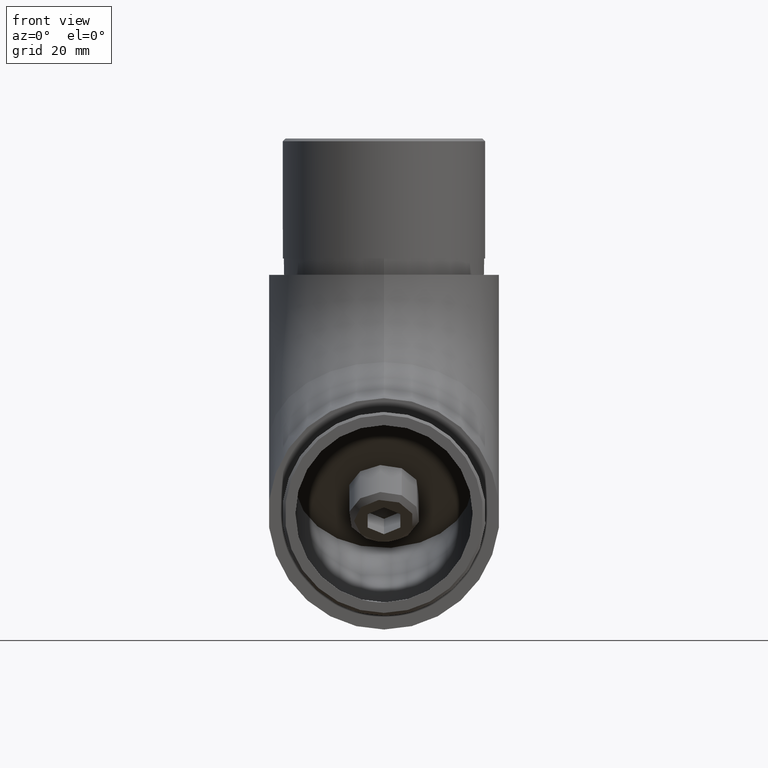
[diagram: clean part render]
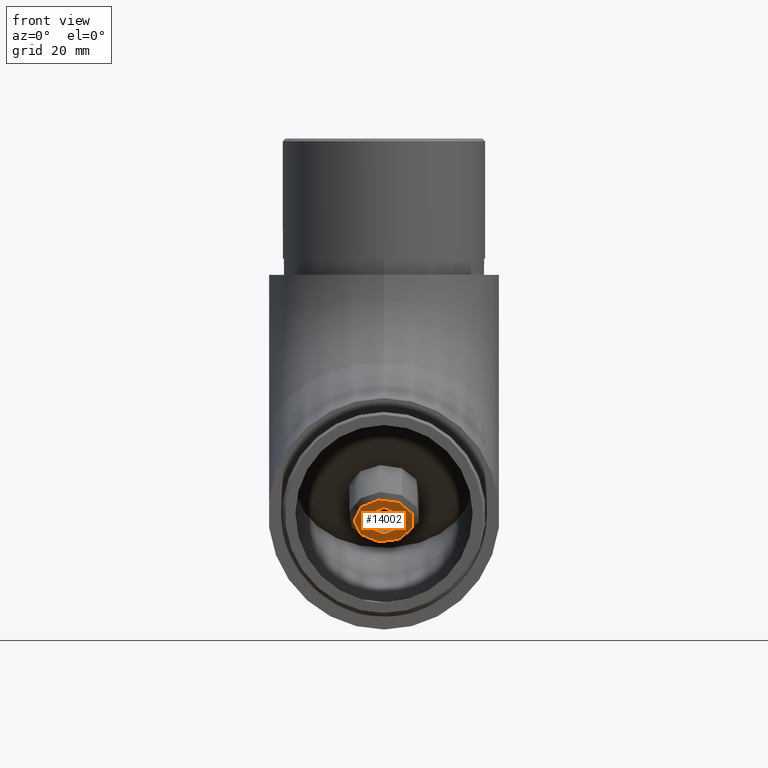
[diagram: same view with one face highlighted and labeled with its STEP entity id]
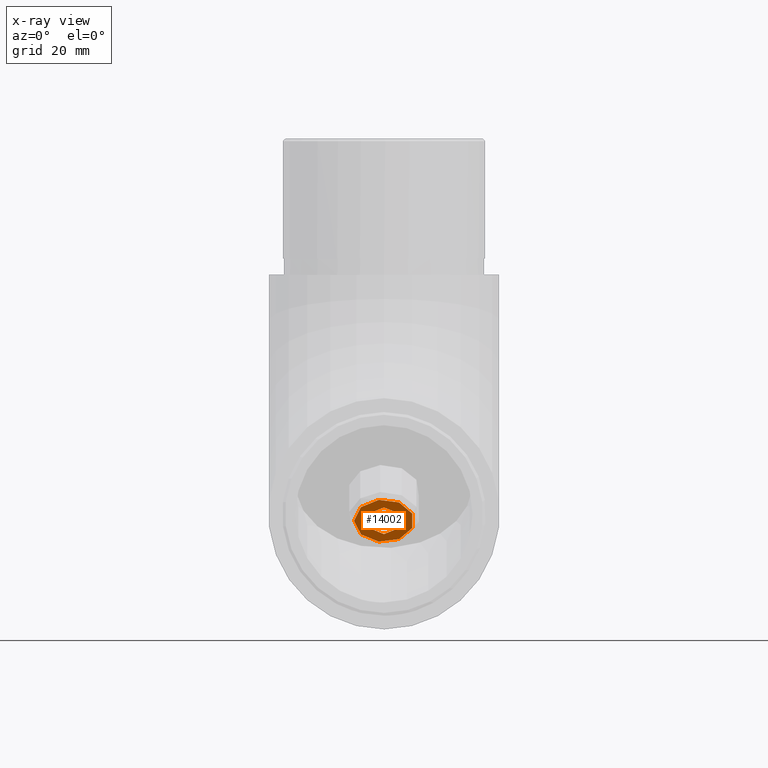
[diagram: x-ray of the same camera — body ghosted, the highlighted face saturated]
A machine part, front view. The second image highlights one B-rep face of the part: STEP entity #14002.
The next image is the same camera in x-ray: the body ghosted, the highlighted face saturated — about 0% of this face is hidden behind the body in this view.
In plain terms, the highlighted planar face has unit normal (0, -0.7071, -0.7071).
Its self-contained STEP definition (entity closure, byte-faithful):
#27 = ORIENTED_EDGE ( 'NONE', *, *, #73, .F. ) ;
#47 = EDGE_CURVE ( 'NONE', #13475, #16513, #13846, .T. ) ;
#73 = EDGE_CURVE ( 'NONE', #2993, #7732, #4271, .T. ) ;
#170 = LINE ( 'NONE', #12012, #2798 ) ;
#467 = AXIS2_PLACEMENT_3D ( 'NONE', #6720, #8180, #6784 ) ;
#786 = ORIENTED_EDGE ( 'NONE', *, *, #7745, .F. ) ;
#836 = VECTOR ( 'NONE', #9980, 1000.000000000000000 ) ;
#1290 = ORIENTED_EDGE ( 'NONE', *, *, #15135, .F. ) ;
#1366 = FACE_OUTER_BOUND ( 'NONE', #1502, .T. ) ;
#1502 = EDGE_LOOP ( 'NONE', ( #6906 ) ) ;
#1630 = VECTOR ( 'NONE', #16906, 1000.000000000000200 ) ;
#1891 = VERTEX_POINT ( 'NONE', #7857 ) ;
#2798 = VECTOR ( 'NONE', #16022, 1000.000000000000100 ) ;
#2921 = CARTESIAN_POINT ( 'NONE',  ( 3.464101615137755700, 8.000000000000000000, 1.088477716662968600E-015 ) ) ;
#2993 = VERTEX_POINT ( 'NONE', #13612 ) ;
#3190 = CARTESIAN_POINT ( 'NONE',  ( 0.0000000000000000000, 8.000000000000000000, 5.500000000000000900 ) ) ;
#3432 = ORIENTED_EDGE ( 'NONE', *, *, #47, .F. ) ;
#3674 = DIRECTION ( 'NONE',  ( -0.5000000000000000000, 0.0000000000000000000, 0.8660254037844386000 ) ) ;
#3738 = CARTESIAN_POINT ( 'NONE',  ( -1.732050807568878100, 8.000000000000000000, -2.999999999999999600 ) ) ;
#3829 = VERTEX_POINT ( 'NONE', #6081 ) ;
#4024 = DIRECTION ( 'NONE',  ( 0.0000000000000000000, 1.000000000000000000, 0.0000000000000000000 ) ) ;
#4271 = LINE ( 'NONE', #2921, #1630 ) ;
#4389 = DIRECTION ( 'NONE',  ( 1.000000000000000000, 0.0000000000000000000, 0.0000000000000000000 ) ) ;
#5033 = VERTEX_POINT ( 'NONE', #3190 ) ;
#5073 = VECTOR ( 'NONE', #14505, 1000.000000000000100 ) ;
#6081 = CARTESIAN_POINT ( 'NONE',  ( -1.732050807568878100, 8.000000000000000000, -2.999999999999999600 ) ) ;
#6105 = EDGE_CURVE ( 'NONE', #5033, #5033, #10459, .T. ) ;
#6409 = CARTESIAN_POINT ( 'NONE',  ( 1.732050807568876100, 8.000000000000000000, -3.000000000000000000 ) ) ;
#6720 = CARTESIAN_POINT ( 'NONE',  ( 0.0000000000000000000, 8.000000000000000000, 0.0000000000000000000 ) ) ;
#6784 = DIRECTION ( 'NONE',  ( 0.0000000000000000000, -0.0000000000000000000, 1.000000000000000000 ) ) ;
#6906 = ORIENTED_EDGE ( 'NONE', *, *, #6105, .T. ) ;
#7018 = LINE ( 'NONE', #10195, #5073 ) ;
#7732 = VERTEX_POINT ( 'NONE', #6409 ) ;
#7745 = EDGE_CURVE ( 'NONE', #3829, #1891, #8265, .T. ) ;
#7829 = CARTESIAN_POINT ( 'NONE',  ( -1.732050807568877000, 8.000000000000000000, 3.000000000000000000 ) ) ;
#7857 = CARTESIAN_POINT ( 'NONE',  ( -3.464101615137754800, 8.000000000000000000, -4.582852039057713100E-016 ) ) ;
#8094 = DIRECTION ( 'NONE',  ( 0.0000000000000000000, 0.0000000000000000000, 1.000000000000000000 ) ) ;
#8180 = DIRECTION ( 'NONE',  ( 0.0000000000000000000, 1.000000000000000000, 0.0000000000000000000 ) ) ;
#8265 = LINE ( 'NONE', #3738, #18059 ) ;
#8276 = CARTESIAN_POINT ( 'NONE',  ( 0.0000000000000000000, 8.000000000000000000, 0.0000000000000000000 ) ) ;
#8447 = ORIENTED_EDGE ( 'NONE', *, *, #8957, .F. ) ;
#8566 = CARTESIAN_POINT ( 'NONE',  ( -1.732050807568877000, 8.000000000000000000, 3.000000000000000000 ) ) ;
#8770 = FACE_BOUND ( 'NONE', #17508, .T. ) ;
#8957 = EDGE_CURVE ( 'NONE', #16513, #2993, #170, .T. ) ;
#9980 = DIRECTION ( 'NONE',  ( -1.000000000000000000, 0.0000000000000000000, 1.251928832280966200E-016 ) ) ;
#10195 = CARTESIAN_POINT ( 'NONE',  ( -3.464101615137754800, 8.000000000000000000, -4.582852039057713100E-016 ) ) ;
#10459 = CIRCLE ( 'NONE', #16201, 5.500000000000000900 ) ;
#10555 = EDGE_CURVE ( 'NONE', #7732, #3829, #16342, .T. ) ;
#11124 = PLANE ( 'NONE',  #467 ) ;
#12012 = CARTESIAN_POINT ( 'NONE',  ( 1.732050807568877600, 8.000000000000000000, 3.000000000000000000 ) ) ;
#13475 = VERTEX_POINT ( 'NONE', #7829 ) ;
#13612 = CARTESIAN_POINT ( 'NONE',  ( 3.464101615137755700, 8.000000000000000000, 1.088477716662968600E-015 ) ) ;
#13846 = LINE ( 'NONE', #8566, #17080 ) ;
#14002 = ADVANCED_FACE ( 'NONE', ( #8770, #1366 ), #11124, .T. ) ;
#14117 = CARTESIAN_POINT ( 'NONE',  ( 1.732050807568876100, 8.000000000000000000, -3.000000000000000000 ) ) ;
#14328 = CARTESIAN_POINT ( 'NONE',  ( 1.732050807568877900, 8.000000000000000000, 3.000000000000000000 ) ) ;
#14505 = DIRECTION ( 'NONE',  ( 0.5000000000000001100, 0.0000000000000000000, 0.8660254037844386000 ) ) ;
#15135 = EDGE_CURVE ( 'NONE', #1891, #13475, #7018, .T. ) ;
#16022 = DIRECTION ( 'NONE',  ( 0.5000000000000003300, 0.0000000000000000000, -0.8660254037844383700 ) ) ;
#16201 = AXIS2_PLACEMENT_3D ( 'NONE', #8276, #4024, #8094 ) ;
#16327 = ORIENTED_EDGE ( 'NONE', *, *, #10555, .F. ) ;
#16342 = LINE ( 'NONE', #14117, #836 ) ;
#16513 = VERTEX_POINT ( 'NONE', #14328 ) ;
#16906 = DIRECTION ( 'NONE',  ( -0.5000000000000003300, 0.0000000000000000000, -0.8660254037844383700 ) ) ;
#17080 = VECTOR ( 'NONE', #4389, 1000.000000000000000 ) ;
#17508 = EDGE_LOOP ( 'NONE', ( #3432, #1290, #786, #16327, #27, #8447 ) ) ;
#18059 = VECTOR ( 'NONE', #3674, 1000.000000000000200 ) ;